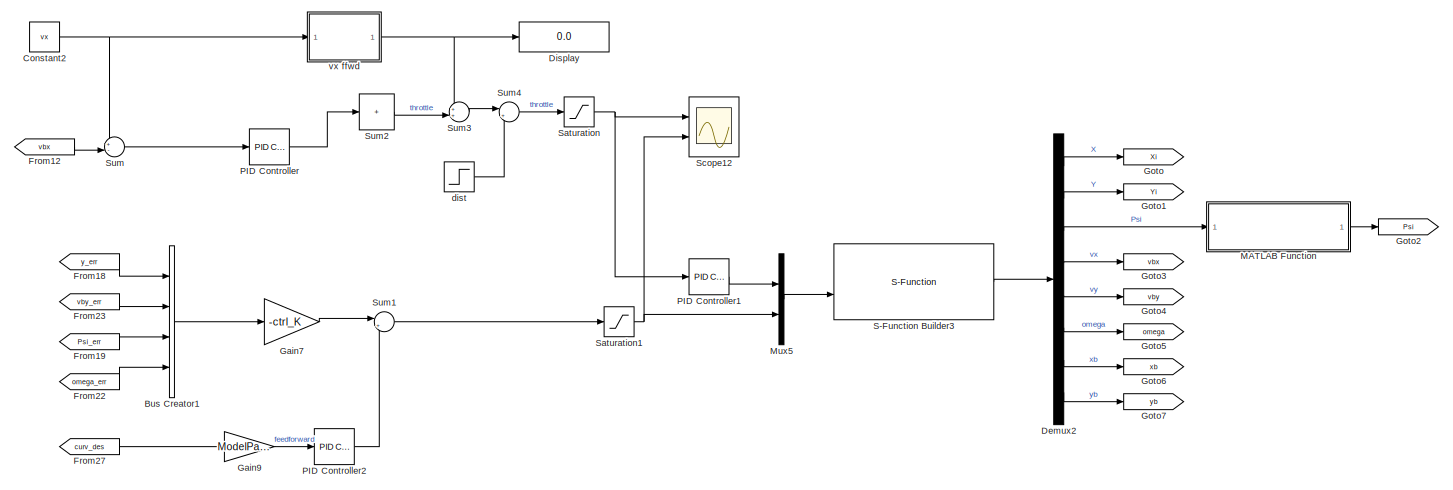
[diagram: root canvas - part 1/2, right side, full height]
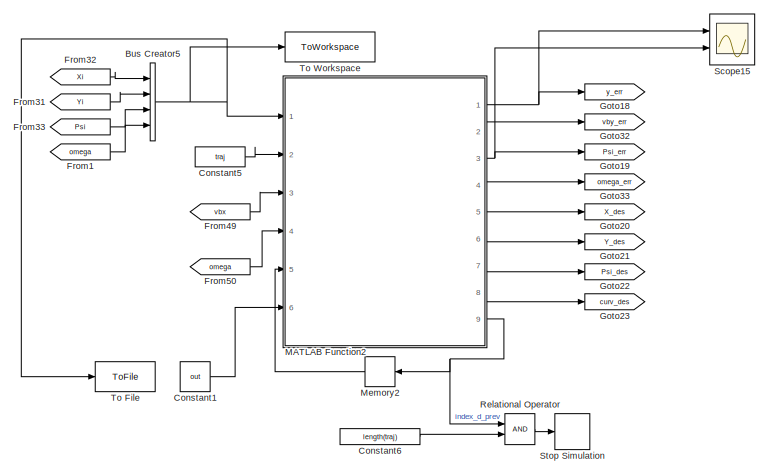
[diagram: root canvas - part 2/2, left side, full height]
MODEL slx_beb59b63b96b
KIND model
CONFIG AbsTol = auto
CONFIG EnableMultiTasking = off
CONFIG FixedStep = 0.001
CONFIG InitFcn = init_car_dynamic
CONFIG MaxStep = auto
CONFIG MinStep = auto
CONFIG RelTol = 1e-3
CONFIG SampleTimeConstraint = Unconstrained
CONFIG SolverName = FixedStepAuto
CONFIG StartTime = 0
CONFIG StopFcn = plot_traj_results
CONFIG StopTime = 40
BLOCK [BusCreator] Bus Creator1
  DisplayOption = bar
  InheritFromInputs = on
  Inputs = 4
  Ports = [4, 1]
BLOCK [BusCreator] Bus Creator5
  DisplayOption = bar
  InheritFromInputs = on
  Inputs = 4
  Ports = [4, 1]
BLOCK [Constant] Constant1
  Value = out
BLOCK [Constant] Constant2
  Value = vx
BLOCK [Constant] Constant5
  Value = traj
BLOCK [Constant] Constant6
  Value = length(traj)
BLOCK [Demux] Demux2
  Outputs = 8
  Ports = [1, 8]
BLOCK [Display] Display
  Decimation = 1
  Ports = [1]
BLOCK [From] From1
  GotoTag = omega
BLOCK [From] From12
  GotoTag = vbx
BLOCK [From] From18
  GotoTag = y_err
BLOCK [From] From19
  GotoTag = Psi_err
BLOCK [From] From22
  GotoTag = omega_err
BLOCK [From] From23
  GotoTag = vby_err
BLOCK [From] From27
  GotoTag = curv_des
BLOCK [From] From31
  GotoTag = Yi
BLOCK [From] From32
  GotoTag = Xi
BLOCK [From] From33
  GotoTag = Psi
BLOCK [From] From49
  GotoTag = vbx
BLOCK [From] From50
  GotoTag = omega
BLOCK [Gain] Gain7
  Gain = -ctrl_K
  Multiplication = Matrix(K*u) (u vector)
BLOCK [Gain] Gain9
  Gain = ModelParams.L
BLOCK [Goto] Goto
  GotoTag = Xi
BLOCK [Goto] Goto1
  GotoTag = Yi
BLOCK [Goto] Goto18
  GotoTag = y_err
BLOCK [Goto] Goto19
  GotoTag = Psi_err
BLOCK [Goto] Goto2
  GotoTag = Psi
BLOCK [Goto] Goto20
  GotoTag = X_des
BLOCK [Goto] Goto21
  GotoTag = Y_des
BLOCK [Goto] Goto22
  GotoTag = Psi_des
BLOCK [Goto] Goto23
  GotoTag = curv_des
BLOCK [Goto] Goto3
  GotoTag = vbx
BLOCK [Goto] Goto32
  GotoTag = vby_err
BLOCK [Goto] Goto33
  GotoTag = omega_err
BLOCK [Goto] Goto4
  GotoTag = vby
BLOCK [Goto] Goto5
  GotoTag = omega
BLOCK [Goto] Goto6
  GotoTag = xb
BLOCK [Goto] Goto7
  GotoTag = yb
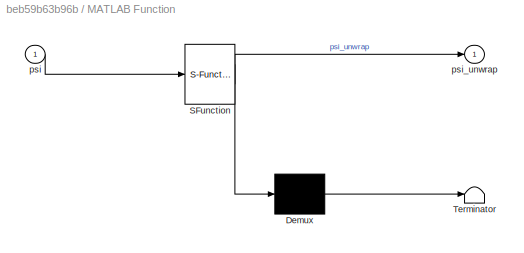
BLOCK [SubSystem] MATLAB Function
  ErrorFcn = Stateflow.Translate.translate
  PermitHierarchicalResolution = ExplicitOnly
  Ports = [1, 1]
  RequestExecContextInheritance = off
  SFBlockType = MATLAB Function
  TreatAsAtomicUnit = on
BLOCK [Demux] MATLAB Function/ Demux 
  Outputs = 1
  Ports = [1, 1]
BLOCK [S-Function] MATLAB Function/ SFunction 
  EnableBusSupport = on
  FunctionName = sf_sfun
  PortCounts = [1 2]
  Ports = [1, 2]
  SFcnIsStateOwnerBlock = off
  SFunctionDeploymentMode = off
  Tag = Stateflow S-Function 3
BLOCK [Terminator] MATLAB Function/ Terminator 
BLOCK [Inport] MATLAB Function/psi
BLOCK [Outport] MATLAB Function/psi_unwrap
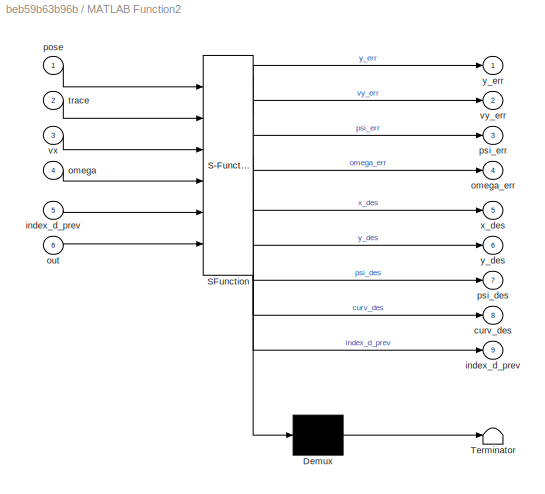
BLOCK [SubSystem] MATLAB Function2
  ErrorFcn = Stateflow.Translate.translate
  PermitHierarchicalResolution = ExplicitOnly
  Ports = [6, 9]
  RequestExecContextInheritance = off
  SFBlockType = MATLAB Function
  TreatAsAtomicUnit = on
BLOCK [Demux] MATLAB Function2/ Demux 
  Outputs = 1
  Ports = [1, 1]
BLOCK [S-Function] MATLAB Function2/ SFunction 
  EnableBusSupport = on
  FunctionName = sf_sfun
  PortCounts = [6 10]
  Ports = [6, 10]
  SFcnIsStateOwnerBlock = off
  SFunctionDeploymentMode = off
  Tag = Stateflow S-Function 5
BLOCK [Terminator] MATLAB Function2/ Terminator 
BLOCK [Outport] MATLAB Function2/curv_des
  Port = 8
BLOCK [Outport] MATLAB Function2/index_d_prev
  Port = 9
BLOCK [Inport] MATLAB Function2/index_d_prev 
  Port = 5
BLOCK [Inport] MATLAB Function2/omega
  Port = 4
BLOCK [Outport] MATLAB Function2/omega_err
  Port = 4
BLOCK [Inport] MATLAB Function2/out
  Port = 6
BLOCK [Inport] MATLAB Function2/pose
BLOCK [Outport] MATLAB Function2/psi_des
  Port = 7
BLOCK [Outport] MATLAB Function2/psi_err
  Port = 3
BLOCK [Inport] MATLAB Function2/trace
  Port = 2
BLOCK [Inport] MATLAB Function2/vx
  Port = 3
BLOCK [Outport] MATLAB Function2/vy_err
  Port = 2
BLOCK [Outport] MATLAB Function2/x_des
  Port = 5
BLOCK [Outport] MATLAB Function2/y_des
  Port = 6
BLOCK [Outport] MATLAB Function2/y_err
BLOCK [Memory] Memory2
BLOCK [Mux] Mux5
  DisplayOption = bar
  Inputs = 2
  Ports = [2, 1]
BLOCK [Reference] PID Controller  REF=slpidlib/PID Controller
  Ports = [1, 1]
  SourceBlock = slpidlib/PID Controller
  SourceProductBaseCode = SL
  SourceType = PID 1dof
BLOCK [Reference] PID Controller1  REF=slpidlib/PID Controller
  Ports = [1, 1]
  SourceBlock = slpidlib/PID Controller
  SourceProductBaseCode = SL
  SourceType = PID 1dof
BLOCK [Reference] PID Controller2  REF=slpidlib/PID Controller
  Ports = [1, 1]
  SourceBlock = slpidlib/PID Controller
  SourceProductBaseCode = SL
  SourceType = PID 1dof
BLOCK [RelationalOperator] Relational Operator
  InputSameDT = off
  OutDataTypeStr = boolean
  Ports = [2, 1]
  RndMeth = Simplest
BLOCK [S-Function] S-Function Builder3
  CopyFcn = set_param(gcbh,'LinkStatus','none')
  EnableBusSupport = off
  FunctionName = car_fast_sfunc
  OpenFcn = sfunctionwizard(gcbh)
  Ports = [2, 1]
  SFcnIsStateOwnerBlock = off
  SFunctionDeploymentMode = off
  SFunctionModules = car_fast_sfunc_wrapper
BLOCK [Saturate] Saturation
  LowerLimit = 0
  UpperLimit = 1
BLOCK [Saturate] Saturation1
  LowerLimit = -pi/3
  UpperLimit = pi/3
BLOCK [Scope] Scope12
  Floating = off
  NumInputPorts = 2
  Ports = [2]
  ScopeSpecificationString = Simulink.scopes.TimeScopeBlockCfg('CurrentConfiguration', extmgr.ConfigurationSet(extmgr.Configuration('Core','General UI',true),extmgr.Configuration('Core','Source UI',true),extmgr.Configuration('Sources','WiredSimulink',true,'DataLoggingVariableName','ScopeData1'),extmgr.Configuration('Visuals','Time Domain',true,'SerializedDisplays',{struct('MinYLimReal','-0.125','MaxYLimReal','1.125','YLabelRe...<+2110ch>
BLOCK [Scope] Scope15
  Floating = off
  NumInputPorts = 2
  Ports = [2]
  ScopeSpecificationString = Simulink.scopes.TimeScopeBlockCfg('CurrentConfiguration', extmgr.ConfigurationSet(extmgr.Configuration('Core','General UI',true),extmgr.Configuration('Core','Source UI',true),extmgr.Configuration('Sources','WiredSimulink',true,'DataLoggingVariableName','ScopeData2'),extmgr.Configuration('Visuals','Time Domain',true,'SerializedDisplays',{struct('MinYLimReal','-0.73247','MaxYLimReal','0.18373','YLab...<+2160ch>
BLOCK [Stop] Stop Simulation
BLOCK [Sum] Sum
  Inputs = +-|
  Ports = [2, 1]
BLOCK [Sum] Sum1
  Inputs = |++
  Ports = [2, 1]
BLOCK [Sum] Sum2
  IconShape = rectangular
  Inputs = +
  Ports = [1, 1]
BLOCK [Sum] Sum3
  Inputs = ++|
  Ports = [2, 1]
BLOCK [Sum] Sum4
  Inputs = |++
  Ports = [2, 1]
BLOCK [ToFile] To File
  Filename = out.mat
  Ports = [1]
  SaveFormat = Timeseries
BLOCK [ToWorkspace] To Workspace
  FixptAsFi = on
  MaxDataPoints = inf
  Ports = [1]
  SampleTime = -1
  SaveFormat = Timeseries
  VariableName = simout
BLOCK [Step] dist
  After = -0.05
  SampleTime = 0
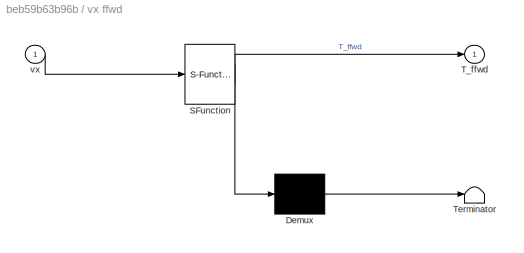
BLOCK [SubSystem] vx ffwd
  ErrorFcn = Stateflow.Translate.translate
  PermitHierarchicalResolution = ExplicitOnly
  Ports = [1, 1]
  RequestExecContextInheritance = off
  SFBlockType = MATLAB Function
  TreatAsAtomicUnit = on
BLOCK [Demux] vx ffwd/ Demux 
  Outputs = 1
  Ports = [1, 1]
BLOCK [S-Function] vx ffwd/ SFunction 
  EnableBusSupport = on
  FunctionName = sf_sfun
  PortCounts = [1 2]
  Ports = [1, 2]
  SFcnIsStateOwnerBlock = off
  SFunctionDeploymentMode = off
  Tag = Stateflow S-Function 6
BLOCK [Terminator] vx ffwd/ Terminator 
BLOCK [Outport] vx ffwd/T_ffwd
BLOCK [Inport] vx ffwd/vx
LINE Bus Creator1:1 -> Gain7:1
NET Bus Creator5:1 -> MATLAB Function2:1, To File:1, To Workspace:1
LINE Constant1:1 -> MATLAB Function2:6
NET Constant2:1 -> Sum:1, vx ffwd:1
LINE Constant5:1 -> MATLAB Function2:2
LINE Constant6:1 -> Relational Operator:2
LINE Demux2:1 -> Goto:1
LINE Demux2:2 -> Goto1:1
LINE Demux2:3 -> MATLAB Function:1
LINE Demux2:4 -> Goto3:1
LINE Demux2:5 -> Goto4:1
LINE Demux2:6 -> Goto5:1
LINE Demux2:7 -> Goto6:1
LINE Demux2:8 -> Goto7:1
LINE From12:1 -> Sum:2
LINE From18:1 -> Bus Creator1:1
LINE From19:1 -> Bus Creator1:3
LINE From1:1 -> Bus Creator5:4
LINE From22:1 -> Bus Creator1:4
LINE From23:1 -> Bus Creator1:2
LINE From27:1 -> Gain9:1
LINE From31:1 -> Bus Creator5:2
LINE From32:1 -> Bus Creator5:1
LINE From33:1 -> Bus Creator5:3
LINE From49:1 -> MATLAB Function2:3
LINE From50:1 -> MATLAB Function2:4
LINE Gain7:1 -> Sum1:1
LINE Gain9:1 -> PID Controller2:1
NET MATLAB Function2:1 -> Goto18:1, Scope15:1
LINE MATLAB Function2:2 -> Goto32:1
NET MATLAB Function2:3 -> Goto19:1, Scope15:2
LINE MATLAB Function2:4 -> Goto33:1
LINE MATLAB Function2:5 -> Goto20:1
LINE MATLAB Function2:6 -> Goto21:1
LINE MATLAB Function2:7 -> Goto22:1
LINE MATLAB Function2:8 -> Goto23:1
NET MATLAB Function2:9 -> Memory2:1, Relational Operator:1
LINE MATLAB Function:1 -> Goto2:1
LINE Memory2:1 -> MATLAB Function2:5
LINE Mux5:1 -> S-Function Builder3:2
LINE PID Controller1:1 -> Mux5:1
LINE PID Controller2:1 -> Sum1:2
LINE PID Controller:1 -> Sum2:1
LINE Relational Operator:1 -> Stop Simulation:1
LINE S-Function Builder3:1 -> Demux2:1
NET Saturation1:1 -> Mux5:2, Scope12:2
NET Saturation:1 -> PID Controller1:1, Scope12:1
LINE Sum1:1 -> Saturation1:1
LINE Sum2:1 -> Sum3:2
LINE Sum3:1 -> Sum4:1
LINE Sum4:1 -> Saturation:1
LINE Sum:1 -> PID Controller:1
LINE dist:1 -> Sum4:2
NET vx ffwd:1 -> Display:1, Sum3:1
note: NET lines group one-source signal fan-out (src -> all destinations, sorted); 1:1 wires keep LINE
CHART MATLAB Function states=1 transitions=1
  STATE_LABEL 'eML_blk_kernel()'
  STATE_LABEL 'SCRIPT:\nfunction psi_unwrap = unwrap(psi)\n\nif ( psi > pi)\n    psi = psi - 2*pi;\nend\n\nif( psi <= -pi)\n    psi = psi + 2*pi;\nend\n\npsi_unwrap = psi;\n'
CHART MATLAB Function2 states=1 transitions=1
  STATE_LABEL 'eML_blk_kernel()'
  STATE_LABEL "SCRIPT:\nfunction [y_err,vy_err,psi_err,omega_err,x_des,y_des,psi_des,curv_des, index_d_prev]=cal_nearest_index(pose, trace, vx, omega, index_d_prev,out)\n\ntraj_x=trace(1,:);      %给定x坐标\ntraj_y=trace(2,:);      %给定y坐标\ntraj_psi=trace(3,:);    %给定航向角Psi\ntraj_k=trace(4,:);      %曲率\n% traj_x=out(:,1)';      %给定x坐标\n% traj_y=out(:,2)';      %给定y坐标\n% traj_psi=out(:,3)';    %给定航向角Psi\n% traj_k=out(:,4)';    ...<+1019ch>"
CHART vx ffwd states=1 transitions=1
  STATE_LABEL 'eML_blk_kernel()'
  STATE_LABEL 'SCRIPT:\nfunction T_ffwd = fcn(vx)\n\nm = 0.041;\ng = 9.8;\nIz = 27.8e-6;\nlf = 0.029;\nlr = 0.033;\nCm1=0.287;\nCm2=0.0545;\nCr0=0.0218;\nCr2=0.00035;\n\nNf = m*g*lr/(lf+lr);\nNr = m*g*lf/(lf+lr);\n\nT_ffwd = -(-Cr0*m*g-2*Cr2*vx^2)/(Cm1-Cm2*vx);\n\n\n'
CHART  states=0 transitions=0
CHART  states=0 transitions=0
CHART  states=0 transitions=0
